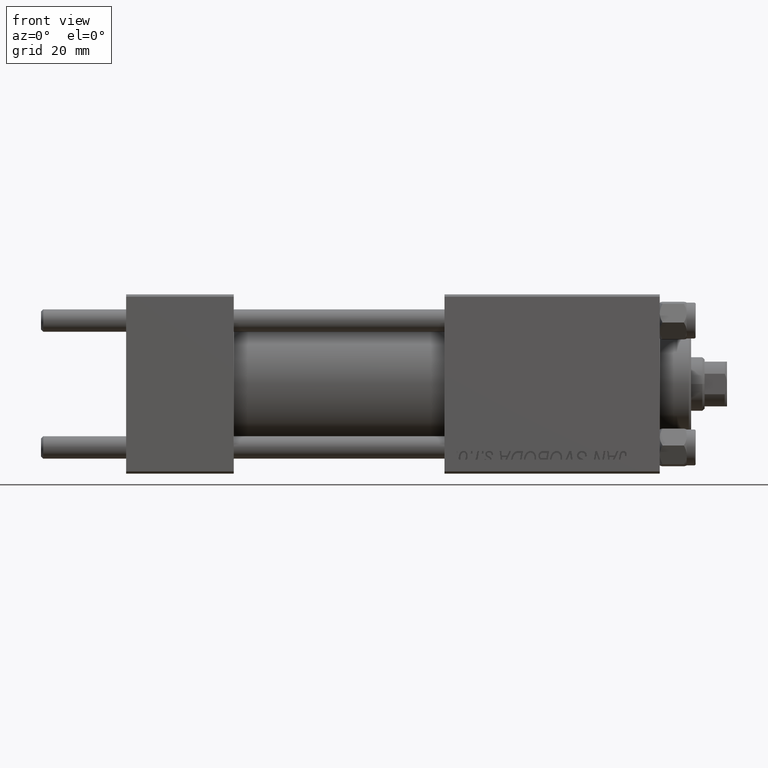
[diagram: clean part render]
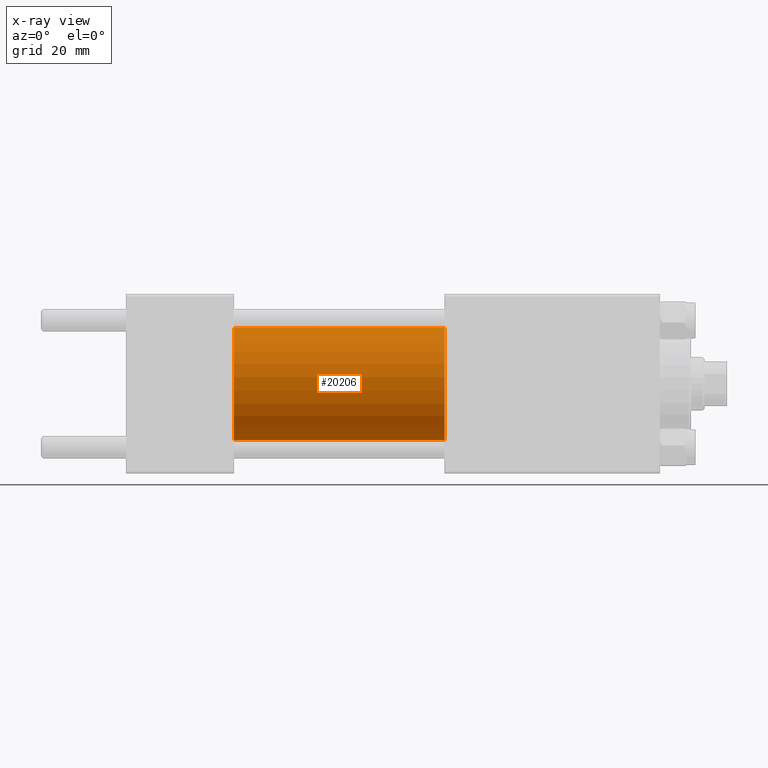
[diagram: x-ray — body ghosted, one internal face saturated and labeled with its STEP entity id]
A machine part, front view, then the same camera in x-ray: the body is ghosted and one INTERNAL B-rep face — a face not visible from any outside direction — is saturated and labeled: STEP entity #20206.
In plain terms, the highlighted cylindrical surface (partial cylindrical patch) has radius 12.5 mm, axis along (-1, -0, -0).
Its self-contained STEP definition (entity closure, byte-faithful):
#59 = VECTOR ( 'NONE', #44413, 1000.000000000000000 ) ;
#914 = EDGE_LOOP ( 'NONE', ( #20527, #46179, #46876, #19750 ) ) ;
#1015 = AXIS2_PLACEMENT_3D ( 'NONE', #32870, #17730, #47112 ) ;
#4887 = EDGE_CURVE ( 'NONE', #28357, #10694, #37959, .T. ) ;
#7412 = DIRECTION ( 'NONE',  ( -1.000000000000000000, -0.000000000000000000, -0.000000000000000000 ) ) ;
#10694 = VERTEX_POINT ( 'NONE', #39667 ) ;
#11396 = VECTOR ( 'NONE', #7412, 1000.000000000000000 ) ;
#12381 = DIRECTION ( 'NONE',  ( 1.000000000000000000, 0.000000000000000000, 0.000000000000000000 ) ) ;
#13442 = CARTESIAN_POINT ( 'NONE',  ( 71.00000000000001421, 0.000000000000000000, 0.000000000000000000 ) ) ;
#17730 = DIRECTION ( 'NONE',  ( 1.000000000000000000, 0.000000000000000000, 0.000000000000000000 ) ) ;
#19750 = ORIENTED_EDGE ( 'NONE', *, *, #4887, .F. ) ;
#20206 = ADVANCED_FACE ( 'NONE', ( #24791 ), #43739, .F. ) ;
#20527 = ORIENTED_EDGE ( 'NONE', *, *, #43471, .T. ) ;
#21797 = CARTESIAN_POINT ( 'NONE',  ( 71.00000000000001421, 1.530808498934191127E-15, -12.49999999999999645 ) ) ;
#24791 = FACE_OUTER_BOUND ( 'NONE', #914, .T. ) ;
#27003 = VERTEX_POINT ( 'NONE', #21797 ) ;
#28357 = VERTEX_POINT ( 'NONE', #41861 ) ;
#28810 = DIRECTION ( 'NONE',  ( 0.000000000000000000, 0.000000000000000000, 1.000000000000000000 ) ) ;
#28898 = CIRCLE ( 'NONE', #36984, 12.49999999999999645 ) ;
#29789 = EDGE_CURVE ( 'NONE', #10694, #36128, #28898, .T. ) ;
#30616 = CARTESIAN_POINT ( 'NONE',  ( 71.00000000000001421, 0.000000000000000000, 12.49999999999999645 ) ) ;
#31182 = AXIS2_PLACEMENT_3D ( 'NONE', #13442, #40185, #28810 ) ;
#31547 = CARTESIAN_POINT ( 'NONE',  ( 24.00000000000000000, 0.000000000000000000, 0.000000000000000000 ) ) ;
#32637 = CARTESIAN_POINT ( 'NONE',  ( 24.00000000000000000, 1.530808498934191127E-15, -12.49999999999999645 ) ) ;
#32870 = CARTESIAN_POINT ( 'NONE',  ( 71.00000000000001421, 0.000000000000000000, 0.000000000000000000 ) ) ;
#34873 = CIRCLE ( 'NONE', #1015, 12.49999999999999645 ) ;
#36128 = VERTEX_POINT ( 'NONE', #32637 ) ;
#36984 = AXIS2_PLACEMENT_3D ( 'NONE', #31547, #12381, #48222 ) ;
#37959 = LINE ( 'NONE', #30616, #11396 ) ;
#39490 = EDGE_CURVE ( 'NONE', #27003, #36128, #44904, .T. ) ;
#39667 = CARTESIAN_POINT ( 'NONE',  ( 24.00000000000000000, 0.000000000000000000, 12.49999999999999645 ) ) ;
#40185 = DIRECTION ( 'NONE',  ( -1.000000000000000000, -0.000000000000000000, -0.000000000000000000 ) ) ;
#41861 = CARTESIAN_POINT ( 'NONE',  ( 71.00000000000001421, 0.000000000000000000, 12.49999999999999645 ) ) ;
#43471 = EDGE_CURVE ( 'NONE', #28357, #27003, #34873, .T. ) ;
#43739 = CYLINDRICAL_SURFACE ( 'NONE', #31182, 12.49999999999999645 ) ;
#44413 = DIRECTION ( 'NONE',  ( -1.000000000000000000, -0.000000000000000000, -0.000000000000000000 ) ) ;
#44904 = LINE ( 'NONE', #45142, #59 ) ;
#45142 = CARTESIAN_POINT ( 'NONE',  ( 71.00000000000001421, 1.530808498934191127E-15, -12.49999999999999645 ) ) ;
#46179 = ORIENTED_EDGE ( 'NONE', *, *, #39490, .T. ) ;
#46876 = ORIENTED_EDGE ( 'NONE', *, *, #29789, .F. ) ;
#47112 = DIRECTION ( 'NONE',  ( 0.000000000000000000, 0.000000000000000000, -1.000000000000000000 ) ) ;
#48222 = DIRECTION ( 'NONE',  ( 0.000000000000000000, 0.000000000000000000, -1.000000000000000000 ) ) ;